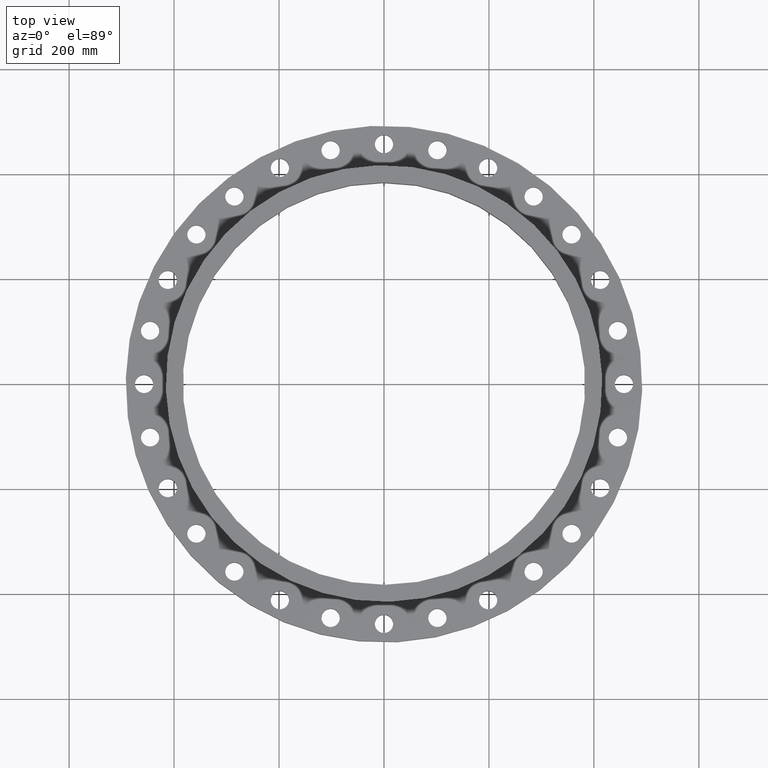
[diagram: clean part render]
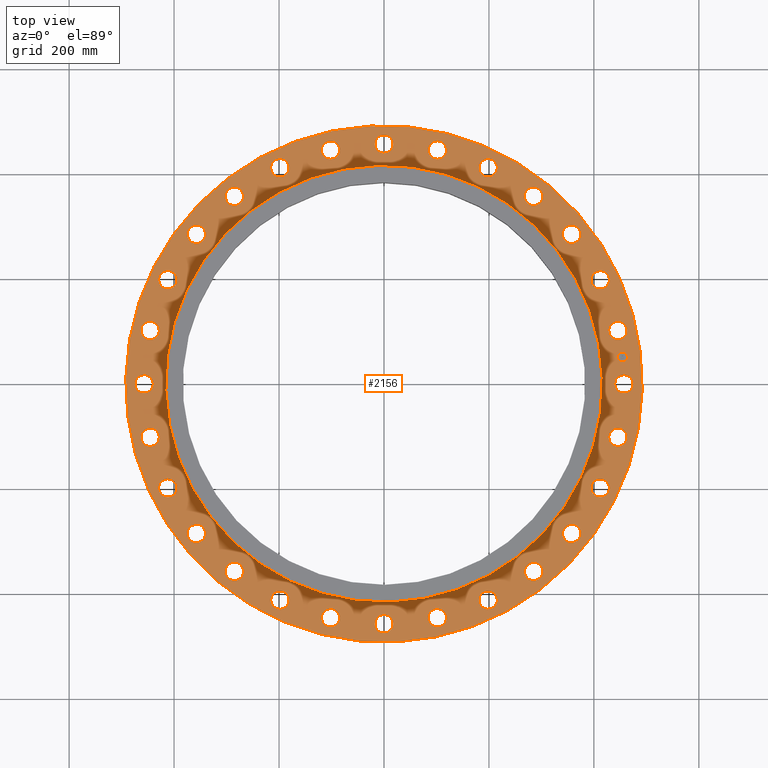
[diagram: same view with one face highlighted and labeled with its STEP entity id]
A machine part, top view. The second image highlights one B-rep face of the part: STEP entity #2156.
In plain terms, the highlighted planar face has unit normal (0, 0, 1).
Its self-contained STEP definition (entity closure, byte-faithful):
#65=AXIS2_PLACEMENT_3D('Circle Axis2P3D',#63,#64,$) ;
#82=AXIS2_PLACEMENT_3D('Circle Axis2P3D',#80,#81,$) ;
#108=AXIS2_PLACEMENT_3D('Circle Axis2P3D',#106,#107,$) ;
#134=AXIS2_PLACEMENT_3D('Circle Axis2P3D',#132,#133,$) ;
#326=AXIS2_PLACEMENT_3D('Circle Axis2P3D',#324,#325,$) ;
#338=AXIS2_PLACEMENT_3D('Circle Axis2P3D',#336,#337,$) ;
#873=AXIS2_PLACEMENT_3D('Circle Axis2P3D',#871,#872,$) ;
#885=AXIS2_PLACEMENT_3D('Circle Axis2P3D',#883,#884,$) ;
#916=AXIS2_PLACEMENT_3D('Circle Axis2P3D',#914,#915,$) ;
#928=AXIS2_PLACEMENT_3D('Circle Axis2P3D',#926,#927,$) ;
#959=AXIS2_PLACEMENT_3D('Circle Axis2P3D',#957,#958,$) ;
#971=AXIS2_PLACEMENT_3D('Circle Axis2P3D',#969,#970,$) ;
#1002=AXIS2_PLACEMENT_3D('Circle Axis2P3D',#1000,#1001,$) ;
#1014=AXIS2_PLACEMENT_3D('Circle Axis2P3D',#1012,#1013,$) ;
#1045=AXIS2_PLACEMENT_3D('Circle Axis2P3D',#1043,#1044,$) ;
#1057=AXIS2_PLACEMENT_3D('Circle Axis2P3D',#1055,#1056,$) ;
#1088=AXIS2_PLACEMENT_3D('Circle Axis2P3D',#1086,#1087,$) ;
#1100=AXIS2_PLACEMENT_3D('Circle Axis2P3D',#1098,#1099,$) ;
#1131=AXIS2_PLACEMENT_3D('Circle Axis2P3D',#1129,#1130,$) ;
#1143=AXIS2_PLACEMENT_3D('Circle Axis2P3D',#1141,#1142,$) ;
#1174=AXIS2_PLACEMENT_3D('Circle Axis2P3D',#1172,#1173,$) ;
#1186=AXIS2_PLACEMENT_3D('Circle Axis2P3D',#1184,#1185,$) ;
#1217=AXIS2_PLACEMENT_3D('Circle Axis2P3D',#1215,#1216,$) ;
#1229=AXIS2_PLACEMENT_3D('Circle Axis2P3D',#1227,#1228,$) ;
#1260=AXIS2_PLACEMENT_3D('Circle Axis2P3D',#1258,#1259,$) ;
#1272=AXIS2_PLACEMENT_3D('Circle Axis2P3D',#1270,#1271,$) ;
#1303=AXIS2_PLACEMENT_3D('Circle Axis2P3D',#1301,#1302,$) ;
#1315=AXIS2_PLACEMENT_3D('Circle Axis2P3D',#1313,#1314,$) ;
#1346=AXIS2_PLACEMENT_3D('Circle Axis2P3D',#1344,#1345,$) ;
#1358=AXIS2_PLACEMENT_3D('Circle Axis2P3D',#1356,#1357,$) ;
#1389=AXIS2_PLACEMENT_3D('Circle Axis2P3D',#1387,#1388,$) ;
#1401=AXIS2_PLACEMENT_3D('Circle Axis2P3D',#1399,#1400,$) ;
#1432=AXIS2_PLACEMENT_3D('Circle Axis2P3D',#1430,#1431,$) ;
#1444=AXIS2_PLACEMENT_3D('Circle Axis2P3D',#1442,#1443,$) ;
#1475=AXIS2_PLACEMENT_3D('Circle Axis2P3D',#1473,#1474,$) ;
#1487=AXIS2_PLACEMENT_3D('Circle Axis2P3D',#1485,#1486,$) ;
#1518=AXIS2_PLACEMENT_3D('Circle Axis2P3D',#1516,#1517,$) ;
#1530=AXIS2_PLACEMENT_3D('Circle Axis2P3D',#1528,#1529,$) ;
#1561=AXIS2_PLACEMENT_3D('Circle Axis2P3D',#1559,#1560,$) ;
#1573=AXIS2_PLACEMENT_3D('Circle Axis2P3D',#1571,#1572,$) ;
#1604=AXIS2_PLACEMENT_3D('Circle Axis2P3D',#1602,#1603,$) ;
#1616=AXIS2_PLACEMENT_3D('Circle Axis2P3D',#1614,#1615,$) ;
#1647=AXIS2_PLACEMENT_3D('Circle Axis2P3D',#1645,#1646,$) ;
#1659=AXIS2_PLACEMENT_3D('Circle Axis2P3D',#1657,#1658,$) ;
#1690=AXIS2_PLACEMENT_3D('Circle Axis2P3D',#1688,#1689,$) ;
#1702=AXIS2_PLACEMENT_3D('Circle Axis2P3D',#1700,#1701,$) ;
#1733=AXIS2_PLACEMENT_3D('Circle Axis2P3D',#1731,#1732,$) ;
#1745=AXIS2_PLACEMENT_3D('Circle Axis2P3D',#1743,#1744,$) ;
#1776=AXIS2_PLACEMENT_3D('Circle Axis2P3D',#1774,#1775,$) ;
#1788=AXIS2_PLACEMENT_3D('Circle Axis2P3D',#1786,#1787,$) ;
#1819=AXIS2_PLACEMENT_3D('Circle Axis2P3D',#1817,#1818,$) ;
#1831=AXIS2_PLACEMENT_3D('Circle Axis2P3D',#1829,#1830,$) ;
#1862=AXIS2_PLACEMENT_3D('Circle Axis2P3D',#1860,#1861,$) ;
#1874=AXIS2_PLACEMENT_3D('Circle Axis2P3D',#1872,#1873,$) ;
#1905=AXIS2_PLACEMENT_3D('Circle Axis2P3D',#1903,#1904,$) ;
#1917=AXIS2_PLACEMENT_3D('Circle Axis2P3D',#1915,#1916,$) ;
#1948=AXIS2_PLACEMENT_3D('Circle Axis2P3D',#1946,#1947,$) ;
#1960=AXIS2_PLACEMENT_3D('Circle Axis2P3D',#1958,#1959,$) ;
#1991=AXIS2_PLACEMENT_3D('Circle Axis2P3D',#1989,#1990,$) ;
#2003=AXIS2_PLACEMENT_3D('Circle Axis2P3D',#2001,#2002,$) ;
#2016=AXIS2_PLACEMENT_3D('Plane Axis2P3D',#2013,#2014,#2015) ;
#2140=AXIS2_PLACEMENT_3D('Circle Axis2P3D',#2138,#2139,$) ;
#2149=AXIS2_PLACEMENT_3D('Circle Axis2P3D',#2147,#2148,$) ;
#46=CARTESIAN_POINT('Vertex',(17.3966619888,0.329605057792,2.12500000001)) ;
#60=CARTESIAN_POINT('Vertex',(18.6033380114,-0.329605057792,2.12500000001)) ;
#63=CARTESIAN_POINT('Axis2P3D Location',(18.0000000001,0.,2.12500000001)) ;
#80=CARTESIAN_POINT('Axis2P3D Location',(18.0000000001,0.,2.12500000001)) ;
#103=CARTESIAN_POINT('Vertex',(-9.28886981049,17.0031621367,2.12500000001)) ;
#106=CARTESIAN_POINT('Axis2P3D Location',(0.,0.,2.12500000001)) ;
#110=CARTESIAN_POINT('Vertex',(9.28886981049,-17.0031621367,2.12500000001)) ;
#132=CARTESIAN_POINT('Axis2P3D Location',(0.,0.,2.12500000001)) ;
#314=CARTESIAN_POINT('Vertex',(-7.85059319468,14.370414451,2.12500000001)) ;
#321=CARTESIAN_POINT('Vertex',(7.85059319468,-14.370414451,2.12500000001)) ;
#324=CARTESIAN_POINT('Axis2P3D Location',(0.,0.,2.12500000001)) ;
#336=CARTESIAN_POINT('Axis2P3D Location',(0.,0.,2.12500000001)) ;
#861=CARTESIAN_POINT('Vertex',(16.8871473263,4.1924626443,2.12500000001)) ;
#868=CARTESIAN_POINT('Vertex',(18.2102575123,3.81829097816,2.12500000001)) ;
#871=CARTESIAN_POINT('Axis2P3D Location',(17.5487024193,4.00537681123,2.12500000001)) ;
#883=CARTESIAN_POINT('Axis2P3D Location',(17.5487024193,4.00537681123,2.12500000001)) ;
#904=CARTESIAN_POINT('Vertex',(15.5308405824,7.84509264763,2.12500000001)) ;
#911=CARTESIAN_POINT('Vertex',(16.9040386622,7.77472196067,2.12500000001)) ;
#914=CARTESIAN_POINT('Axis2P3D Location',(16.2174396223,7.80990730415,2.12500000001)) ;
#926=CARTESIAN_POINT('Axis2P3D Location',(16.2174396223,7.80990730415,2.12500000001)) ;
#947=CARTESIAN_POINT('Vertex',(13.3957526405,11.1043369473,2.12500000001)) ;
#954=CARTESIAN_POINT('Vertex',(14.7501807285,11.3412959197,2.12500000001)) ;
#957=CARTESIAN_POINT('Axis2P3D Location',(14.0729666845,11.2228164335,2.12500000001)) ;
#969=CARTESIAN_POINT('Axis2P3D Location',(14.0729666845,11.2228164335,2.12500000001)) ;
#990=CARTESIAN_POINT('Vertex',(10.5889457254,13.8067634248,2.12500000001)) ;
#997=CARTESIAN_POINT('Vertex',(11.8566871416,14.3391699441,2.12500000001)) ;
#1000=CARTESIAN_POINT('Axis2P3D Location',(11.2228164335,14.0729666845,2.12500000001)) ;
#1012=CARTESIAN_POINT('Axis2P3D Location',(11.2228164335,14.0729666845,2.12500000001)) ;
#1033=CARTESIAN_POINT('Vertex',(7.25116485608,15.8168611322,2.12500000001)) ;
#1040=CARTESIAN_POINT('Vertex',(8.36864975222,16.6180181124,2.12500000001)) ;
#1043=CARTESIAN_POINT('Axis2P3D Location',(7.80990730415,16.2174396223,2.12500000001)) ;
#1055=CARTESIAN_POINT('Axis2P3D Location',(7.80990730415,16.2174396223,2.12500000001)) ;
#1076=CARTESIAN_POINT('Vertex',(3.54978030263,17.0338353769,2.12500000001)) ;
#1083=CARTESIAN_POINT('Vertex',(4.46097331983,18.0635694617,2.12500000001)) ;
#1086=CARTESIAN_POINT('Axis2P3D Location',(4.00537681123,17.5487024193,2.12500000001)) ;
#1098=CARTESIAN_POINT('Axis2P3D Location',(4.00537681123,17.5487024193,2.12500000001)) ;
#1119=CARTESIAN_POINT('Vertex',(-0.329605057792,17.3966619888,2.12500000001)) ;
#1126=CARTESIAN_POINT('Vertex',(0.329605057792,18.6033380114,2.12500000001)) ;
#1129=CARTESIAN_POINT('Axis2P3D Location',(2.86105513149E-015,18.0000000001,2.12500000001)) ;
#1141=CARTESIAN_POINT('Axis2P3D Location',(2.86105513149E-015,18.0000000001,2.12500000001)) ;
#1162=CARTESIAN_POINT('Vertex',(-4.1924626443,16.8871473263,2.12500000001)) ;
#1169=CARTESIAN_POINT('Vertex',(-3.81829097816,18.2102575123,2.12500000001)) ;
#1172=CARTESIAN_POINT('Axis2P3D Location',(-4.00537681123,17.5487024193,2.12500000001)) ;
#1184=CARTESIAN_POINT('Axis2P3D Location',(-4.00537681123,17.5487024193,2.12500000001)) ;
#1205=CARTESIAN_POINT('Vertex',(-7.84509264763,15.5308405824,2.12500000001)) ;
#1212=CARTESIAN_POINT('Vertex',(-7.77472196067,16.9040386622,2.12500000001)) ;
#1215=CARTESIAN_POINT('Axis2P3D Location',(-7.80990730415,16.2174396223,2.12500000001)) ;
#1227=CARTESIAN_POINT('Axis2P3D Location',(-7.80990730415,16.2174396223,2.12500000001)) ;
#1248=CARTESIAN_POINT('Vertex',(-11.1043369473,13.3957526405,2.12500000001)) ;
#1255=CARTESIAN_POINT('Vertex',(-11.3412959197,14.7501807285,2.12500000001)) ;
#1258=CARTESIAN_POINT('Axis2P3D Location',(-11.2228164335,14.0729666845,2.12500000001)) ;
#1270=CARTESIAN_POINT('Axis2P3D Location',(-11.2228164335,14.0729666845,2.12500000001)) ;
#1291=CARTESIAN_POINT('Vertex',(-13.8067634248,10.5889457254,2.12500000001)) ;
#1298=CARTESIAN_POINT('Vertex',(-14.3391699441,11.8566871416,2.12500000001)) ;
#1301=CARTESIAN_POINT('Axis2P3D Location',(-14.0729666845,11.2228164335,2.12500000001)) ;
#1313=CARTESIAN_POINT('Axis2P3D Location',(-14.0729666845,11.2228164335,2.12500000001)) ;
#1334=CARTESIAN_POINT('Vertex',(-15.8168611322,7.25116485608,2.12500000001)) ;
#1341=CARTESIAN_POINT('Vertex',(-16.6180181124,8.36864975222,2.12500000001)) ;
#1344=CARTESIAN_POINT('Axis2P3D Location',(-16.2174396223,7.80990730415,2.12500000001)) ;
#1356=CARTESIAN_POINT('Axis2P3D Location',(-16.2174396223,7.80990730415,2.12500000001)) ;
#1377=CARTESIAN_POINT('Vertex',(-17.0338353769,3.54978030263,2.12500000001)) ;
#1384=CARTESIAN_POINT('Vertex',(-18.0635694617,4.46097331983,2.12500000001)) ;
#1387=CARTESIAN_POINT('Axis2P3D Location',(-17.5487024193,4.00537681123,2.12500000001)) ;
#1399=CARTESIAN_POINT('Axis2P3D Location',(-17.5487024193,4.00537681123,2.12500000001)) ;
#1420=CARTESIAN_POINT('Vertex',(-17.3966619888,-0.329605057792,2.12500000001)) ;
#1427=CARTESIAN_POINT('Vertex',(-18.6033380114,0.329605057792,2.12500000001)) ;
#1430=CARTESIAN_POINT('Axis2P3D Location',(-18.0000000001,1.01979700158E-014,2.12500000001)) ;
#1442=CARTESIAN_POINT('Axis2P3D Location',(-18.0000000001,1.01979700158E-014,2.12500000001)) ;
#1463=CARTESIAN_POINT('Vertex',(-16.8871473263,-4.1924626443,2.12500000001)) ;
#1470=CARTESIAN_POINT('Vertex',(-18.2102575123,-3.81829097816,2.12500000001)) ;
#1473=CARTESIAN_POINT('Axis2P3D Location',(-17.5487024193,-4.00537681123,2.12500000001)) ;
#1485=CARTESIAN_POINT('Axis2P3D Location',(-17.5487024193,-4.00537681123,2.12500000001)) ;
#1506=CARTESIAN_POINT('Vertex',(-15.5308405824,-7.84509264763,2.12500000001)) ;
#1513=CARTESIAN_POINT('Vertex',(-16.9040386622,-7.77472196067,2.12500000001)) ;
#1516=CARTESIAN_POINT('Axis2P3D Location',(-16.2174396223,-7.80990730415,2.12500000001)) ;
#1528=CARTESIAN_POINT('Axis2P3D Location',(-16.2174396223,-7.80990730415,2.12500000001)) ;
#1549=CARTESIAN_POINT('Vertex',(-13.3957526405,-11.1043369473,2.12500000001)) ;
#1556=CARTESIAN_POINT('Vertex',(-14.7501807285,-11.3412959197,2.12500000001)) ;
#1559=CARTESIAN_POINT('Axis2P3D Location',(-14.0729666845,-11.2228164335,2.12500000001)) ;
#1571=CARTESIAN_POINT('Axis2P3D Location',(-14.0729666845,-11.2228164335,2.12500000001)) ;
#1592=CARTESIAN_POINT('Vertex',(-10.5889457254,-13.8067634248,2.12500000001)) ;
#1599=CARTESIAN_POINT('Vertex',(-11.8566871416,-14.3391699441,2.12500000001)) ;
#1602=CARTESIAN_POINT('Axis2P3D Location',(-11.2228164335,-14.0729666845,2.12500000001)) ;
#1614=CARTESIAN_POINT('Axis2P3D Location',(-11.2228164335,-14.0729666845,2.12500000001)) ;
#1635=CARTESIAN_POINT('Vertex',(-7.25116485608,-15.8168611322,2.12500000001)) ;
#1642=CARTESIAN_POINT('Vertex',(-8.36864975222,-16.6180181124,2.12500000001)) ;
#1645=CARTESIAN_POINT('Axis2P3D Location',(-7.80990730415,-16.2174396223,2.12500000001)) ;
#1657=CARTESIAN_POINT('Axis2P3D Location',(-7.80990730415,-16.2174396223,2.12500000001)) ;
#1678=CARTESIAN_POINT('Vertex',(-3.54978030263,-17.0338353769,2.12500000001)) ;
#1685=CARTESIAN_POINT('Vertex',(-4.46097331983,-18.0635694617,2.12500000001)) ;
#1688=CARTESIAN_POINT('Axis2P3D Location',(-4.00537681123,-17.5487024193,2.12500000001)) ;
#1700=CARTESIAN_POINT('Axis2P3D Location',(-4.00537681123,-17.5487024193,2.12500000001)) ;
#1721=CARTESIAN_POINT('Vertex',(0.329605057792,-17.3966619888,2.12500000001)) ;
#1728=CARTESIAN_POINT('Vertex',(-0.329605057792,-18.6033380114,2.12500000001)) ;
#1731=CARTESIAN_POINT('Axis2P3D Location',(-3.30654635771E-015,-18.0000000001,2.12500000001)) ;
#1743=CARTESIAN_POINT('Axis2P3D Location',(-3.30654635771E-015,-18.0000000001,2.12500000001)) ;
#1764=CARTESIAN_POINT('Vertex',(4.1924626443,-16.8871473263,2.12500000001)) ;
#1771=CARTESIAN_POINT('Vertex',(3.81829097816,-18.2102575123,2.12500000001)) ;
#1774=CARTESIAN_POINT('Axis2P3D Location',(4.00537681123,-17.5487024193,2.12500000001)) ;
#1786=CARTESIAN_POINT('Axis2P3D Location',(4.00537681123,-17.5487024193,2.12500000001)) ;
#1807=CARTESIAN_POINT('Vertex',(7.84509264763,-15.5308405824,2.12500000001)) ;
#1814=CARTESIAN_POINT('Vertex',(7.77472196067,-16.9040386622,2.12500000001)) ;
#1817=CARTESIAN_POINT('Axis2P3D Location',(7.80990730415,-16.2174396223,2.12500000001)) ;
#1829=CARTESIAN_POINT('Axis2P3D Location',(7.80990730415,-16.2174396223,2.12500000001)) ;
#1850=CARTESIAN_POINT('Vertex',(11.1043369473,-13.3957526405,2.12500000001)) ;
#1857=CARTESIAN_POINT('Vertex',(11.3412959197,-14.7501807285,2.12500000001)) ;
#1860=CARTESIAN_POINT('Axis2P3D Location',(11.2228164335,-14.0729666845,2.12500000001)) ;
#1872=CARTESIAN_POINT('Axis2P3D Location',(11.2228164335,-14.0729666845,2.12500000001)) ;
#1893=CARTESIAN_POINT('Vertex',(13.8067634248,-10.5889457254,2.12500000001)) ;
#1900=CARTESIAN_POINT('Vertex',(14.3391699441,-11.8566871416,2.12500000001)) ;
#1903=CARTESIAN_POINT('Axis2P3D Location',(14.0729666845,-11.2228164335,2.12500000001)) ;
#1915=CARTESIAN_POINT('Axis2P3D Location',(14.0729666845,-11.2228164335,2.12500000001)) ;
#1936=CARTESIAN_POINT('Vertex',(15.8168611322,-7.25116485608,2.12500000001)) ;
#1943=CARTESIAN_POINT('Vertex',(16.6180181124,-8.36864975222,2.12500000001)) ;
#1946=CARTESIAN_POINT('Axis2P3D Location',(16.2174396223,-7.80990730415,2.12500000001)) ;
#1958=CARTESIAN_POINT('Axis2P3D Location',(16.2174396223,-7.80990730415,2.12500000001)) ;
#1979=CARTESIAN_POINT('Vertex',(17.0338353769,-3.54978030263,2.12500000001)) ;
#1986=CARTESIAN_POINT('Vertex',(18.0635694617,-4.46097331983,2.12500000001)) ;
#1989=CARTESIAN_POINT('Axis2P3D Location',(17.5487024193,-4.00537681123,2.12500000001)) ;
#2001=CARTESIAN_POINT('Axis2P3D Location',(17.5487024193,-4.00537681123,2.12500000001)) ;
#2013=CARTESIAN_POINT('Axis2P3D Location',(0.,16.3750000001,2.12500000001)) ;
#2138=CARTESIAN_POINT('Axis2P3D Location',(17.8868197781,2.01536056987,2.12500000001)) ;
#2142=CARTESIAN_POINT('Vertex',(17.8448330996,2.38800264858,2.12500000001)) ;
#2144=CARTESIAN_POINT('Vertex',(17.9288064567,1.64271849116,2.12500000001)) ;
#2147=CARTESIAN_POINT('Axis2P3D Location',(17.8868197781,2.01536056987,2.12500000001)) ;
#64=DIRECTION('Axis2P3D Direction',(0.,-0.,-0.0393700787402)) ;
#81=DIRECTION('Axis2P3D Direction',(0.,-0.,-0.0393700787402)) ;
#107=DIRECTION('Axis2P3D Direction',(0.,0.,0.0393700787402)) ;
#133=DIRECTION('Axis2P3D Direction',(0.,0.,0.0393700787402)) ;
#325=DIRECTION('Axis2P3D Direction',(0.,0.,0.0393700787402)) ;
#337=DIRECTION('Axis2P3D Direction',(0.,0.,0.0393700787402)) ;
#872=DIRECTION('Axis2P3D Direction',(0.,0.,-0.0393700787402)) ;
#884=DIRECTION('Axis2P3D Direction',(0.,0.,-0.0393700787402)) ;
#915=DIRECTION('Axis2P3D Direction',(0.,0.,-0.0393700787402)) ;
#927=DIRECTION('Axis2P3D Direction',(0.,0.,-0.0393700787402)) ;
#958=DIRECTION('Axis2P3D Direction',(0.,0.,-0.0393700787402)) ;
#970=DIRECTION('Axis2P3D Direction',(0.,0.,-0.0393700787402)) ;
#1001=DIRECTION('Axis2P3D Direction',(0.,0.,-0.0393700787402)) ;
#1013=DIRECTION('Axis2P3D Direction',(0.,0.,-0.0393700787402)) ;
#1044=DIRECTION('Axis2P3D Direction',(0.,0.,-0.0393700787402)) ;
#1056=DIRECTION('Axis2P3D Direction',(0.,0.,-0.0393700787402)) ;
#1087=DIRECTION('Axis2P3D Direction',(0.,0.,-0.0393700787402)) ;
#1099=DIRECTION('Axis2P3D Direction',(0.,0.,-0.0393700787402)) ;
#1130=DIRECTION('Axis2P3D Direction',(0.,0.,-0.0393700787402)) ;
#1142=DIRECTION('Axis2P3D Direction',(0.,0.,-0.0393700787402)) ;
#1173=DIRECTION('Axis2P3D Direction',(0.,0.,-0.0393700787402)) ;
#1185=DIRECTION('Axis2P3D Direction',(0.,0.,-0.0393700787402)) ;
#1216=DIRECTION('Axis2P3D Direction',(0.,0.,-0.0393700787402)) ;
#1228=DIRECTION('Axis2P3D Direction',(0.,0.,-0.0393700787402)) ;
#1259=DIRECTION('Axis2P3D Direction',(0.,0.,-0.0393700787402)) ;
#1271=DIRECTION('Axis2P3D Direction',(0.,0.,-0.0393700787402)) ;
#1302=DIRECTION('Axis2P3D Direction',(0.,0.,-0.0393700787402)) ;
#1314=DIRECTION('Axis2P3D Direction',(0.,0.,-0.0393700787402)) ;
#1345=DIRECTION('Axis2P3D Direction',(0.,0.,-0.0393700787402)) ;
#1357=DIRECTION('Axis2P3D Direction',(0.,0.,-0.0393700787402)) ;
#1388=DIRECTION('Axis2P3D Direction',(0.,0.,-0.0393700787402)) ;
#1400=DIRECTION('Axis2P3D Direction',(0.,0.,-0.0393700787402)) ;
#1431=DIRECTION('Axis2P3D Direction',(0.,0.,-0.0393700787402)) ;
#1443=DIRECTION('Axis2P3D Direction',(0.,0.,-0.0393700787402)) ;
#1474=DIRECTION('Axis2P3D Direction',(-0.,0.,-0.0393700787402)) ;
#1486=DIRECTION('Axis2P3D Direction',(-0.,0.,-0.0393700787402)) ;
#1517=DIRECTION('Axis2P3D Direction',(-0.,0.,-0.0393700787402)) ;
#1529=DIRECTION('Axis2P3D Direction',(-0.,0.,-0.0393700787402)) ;
#1560=DIRECTION('Axis2P3D Direction',(-0.,0.,-0.0393700787402)) ;
#1572=DIRECTION('Axis2P3D Direction',(-0.,0.,-0.0393700787402)) ;
#1603=DIRECTION('Axis2P3D Direction',(-0.,0.,-0.0393700787402)) ;
#1615=DIRECTION('Axis2P3D Direction',(-0.,0.,-0.0393700787402)) ;
#1646=DIRECTION('Axis2P3D Direction',(-0.,0.,-0.0393700787402)) ;
#1658=DIRECTION('Axis2P3D Direction',(-0.,0.,-0.0393700787402)) ;
#1689=DIRECTION('Axis2P3D Direction',(-0.,0.,-0.0393700787402)) ;
#1701=DIRECTION('Axis2P3D Direction',(-0.,0.,-0.0393700787402)) ;
#1732=DIRECTION('Axis2P3D Direction',(-0.,0.,-0.0393700787402)) ;
#1744=DIRECTION('Axis2P3D Direction',(-0.,0.,-0.0393700787402)) ;
#1775=DIRECTION('Axis2P3D Direction',(0.,-0.,-0.0393700787402)) ;
#1787=DIRECTION('Axis2P3D Direction',(0.,-0.,-0.0393700787402)) ;
#1818=DIRECTION('Axis2P3D Direction',(0.,-0.,-0.0393700787402)) ;
#1830=DIRECTION('Axis2P3D Direction',(0.,-0.,-0.0393700787402)) ;
#1861=DIRECTION('Axis2P3D Direction',(0.,-0.,-0.0393700787402)) ;
#1873=DIRECTION('Axis2P3D Direction',(0.,-0.,-0.0393700787402)) ;
#1904=DIRECTION('Axis2P3D Direction',(0.,-0.,-0.0393700787402)) ;
#1916=DIRECTION('Axis2P3D Direction',(0.,-0.,-0.0393700787402)) ;
#1947=DIRECTION('Axis2P3D Direction',(0.,-0.,-0.0393700787402)) ;
#1959=DIRECTION('Axis2P3D Direction',(0.,-0.,-0.0393700787402)) ;
#1990=DIRECTION('Axis2P3D Direction',(0.,-0.,-0.0393700787402)) ;
#2002=DIRECTION('Axis2P3D Direction',(0.,-0.,-0.0393700787402)) ;
#2014=DIRECTION('Axis2P3D Direction',(0.,0.,0.0393700787402)) ;
#2015=DIRECTION('Axis2P3D XDirection',(0.0393700787402,0.,0.)) ;
#2139=DIRECTION('Axis2P3D Direction',(0.,0.,0.0393700787402)) ;
#2148=DIRECTION('Axis2P3D Direction',(0.,0.,0.0393700787402)) ;
#2019=ORIENTED_EDGE('',*,*,#112,.T.) ;
#2020=ORIENTED_EDGE('',*,*,#136,.T.) ;
#2023=ORIENTED_EDGE('',*,*,#84,.F.) ;
#2024=ORIENTED_EDGE('',*,*,#67,.F.) ;
#2027=ORIENTED_EDGE('',*,*,#340,.F.) ;
#2028=ORIENTED_EDGE('',*,*,#328,.F.) ;
#2031=ORIENTED_EDGE('',*,*,#875,.F.) ;
#2032=ORIENTED_EDGE('',*,*,#887,.F.) ;
#2035=ORIENTED_EDGE('',*,*,#918,.F.) ;
#2036=ORIENTED_EDGE('',*,*,#930,.F.) ;
#2039=ORIENTED_EDGE('',*,*,#961,.F.) ;
#2040=ORIENTED_EDGE('',*,*,#973,.F.) ;
#2043=ORIENTED_EDGE('',*,*,#1004,.F.) ;
#2044=ORIENTED_EDGE('',*,*,#1016,.F.) ;
#2047=ORIENTED_EDGE('',*,*,#1047,.F.) ;
#2048=ORIENTED_EDGE('',*,*,#1059,.F.) ;
#2051=ORIENTED_EDGE('',*,*,#1090,.F.) ;
#2052=ORIENTED_EDGE('',*,*,#1102,.F.) ;
#2055=ORIENTED_EDGE('',*,*,#1133,.F.) ;
#2056=ORIENTED_EDGE('',*,*,#1145,.F.) ;
#2059=ORIENTED_EDGE('',*,*,#1176,.F.) ;
#2060=ORIENTED_EDGE('',*,*,#1188,.F.) ;
#2063=ORIENTED_EDGE('',*,*,#1219,.F.) ;
#2064=ORIENTED_EDGE('',*,*,#1231,.F.) ;
#2067=ORIENTED_EDGE('',*,*,#1262,.F.) ;
#2068=ORIENTED_EDGE('',*,*,#1274,.F.) ;
#2071=ORIENTED_EDGE('',*,*,#1305,.F.) ;
#2072=ORIENTED_EDGE('',*,*,#1317,.F.) ;
#2075=ORIENTED_EDGE('',*,*,#1348,.F.) ;
#2076=ORIENTED_EDGE('',*,*,#1360,.F.) ;
#2079=ORIENTED_EDGE('',*,*,#1391,.F.) ;
#2080=ORIENTED_EDGE('',*,*,#1403,.F.) ;
#2083=ORIENTED_EDGE('',*,*,#1434,.F.) ;
#2084=ORIENTED_EDGE('',*,*,#1446,.F.) ;
#2087=ORIENTED_EDGE('',*,*,#1477,.F.) ;
#2088=ORIENTED_EDGE('',*,*,#1489,.F.) ;
#2091=ORIENTED_EDGE('',*,*,#1520,.F.) ;
#2092=ORIENTED_EDGE('',*,*,#1532,.F.) ;
#2095=ORIENTED_EDGE('',*,*,#1563,.F.) ;
#2096=ORIENTED_EDGE('',*,*,#1575,.F.) ;
#2099=ORIENTED_EDGE('',*,*,#1606,.F.) ;
#2100=ORIENTED_EDGE('',*,*,#1618,.F.) ;
#2103=ORIENTED_EDGE('',*,*,#1649,.F.) ;
#2104=ORIENTED_EDGE('',*,*,#1661,.F.) ;
#2107=ORIENTED_EDGE('',*,*,#1692,.F.) ;
#2108=ORIENTED_EDGE('',*,*,#1704,.F.) ;
#2111=ORIENTED_EDGE('',*,*,#1735,.F.) ;
#2112=ORIENTED_EDGE('',*,*,#1747,.F.) ;
#2115=ORIENTED_EDGE('',*,*,#1778,.F.) ;
#2116=ORIENTED_EDGE('',*,*,#1790,.F.) ;
#2119=ORIENTED_EDGE('',*,*,#1821,.F.) ;
#2120=ORIENTED_EDGE('',*,*,#1833,.F.) ;
#2123=ORIENTED_EDGE('',*,*,#1864,.F.) ;
#2124=ORIENTED_EDGE('',*,*,#1876,.F.) ;
#2127=ORIENTED_EDGE('',*,*,#1907,.F.) ;
#2128=ORIENTED_EDGE('',*,*,#1919,.F.) ;
#2131=ORIENTED_EDGE('',*,*,#1950,.F.) ;
#2132=ORIENTED_EDGE('',*,*,#1962,.F.) ;
#2135=ORIENTED_EDGE('',*,*,#1993,.F.) ;
#2136=ORIENTED_EDGE('',*,*,#2005,.F.) ;
#2153=ORIENTED_EDGE('',*,*,#2146,.F.) ;
#2154=ORIENTED_EDGE('',*,*,#2151,.F.) ;
#2025=FACE_BOUND('',#2022,.T.) ;
#2029=FACE_BOUND('',#2026,.T.) ;
#2033=FACE_BOUND('',#2030,.T.) ;
#2037=FACE_BOUND('',#2034,.T.) ;
#2041=FACE_BOUND('',#2038,.T.) ;
#2045=FACE_BOUND('',#2042,.T.) ;
#2049=FACE_BOUND('',#2046,.T.) ;
#2053=FACE_BOUND('',#2050,.T.) ;
#2057=FACE_BOUND('',#2054,.T.) ;
#2061=FACE_BOUND('',#2058,.T.) ;
#2065=FACE_BOUND('',#2062,.T.) ;
#2069=FACE_BOUND('',#2066,.T.) ;
#2073=FACE_BOUND('',#2070,.T.) ;
#2077=FACE_BOUND('',#2074,.T.) ;
#2081=FACE_BOUND('',#2078,.T.) ;
#2085=FACE_BOUND('',#2082,.T.) ;
#2089=FACE_BOUND('',#2086,.T.) ;
#2093=FACE_BOUND('',#2090,.T.) ;
#2097=FACE_BOUND('',#2094,.T.) ;
#2101=FACE_BOUND('',#2098,.T.) ;
#2105=FACE_BOUND('',#2102,.T.) ;
#2109=FACE_BOUND('',#2106,.T.) ;
#2113=FACE_BOUND('',#2110,.T.) ;
#2117=FACE_BOUND('',#2114,.T.) ;
#2121=FACE_BOUND('',#2118,.T.) ;
#2125=FACE_BOUND('',#2122,.T.) ;
#2129=FACE_BOUND('',#2126,.T.) ;
#2133=FACE_BOUND('',#2130,.T.) ;
#2137=FACE_BOUND('',#2134,.T.) ;
#2155=FACE_BOUND('',#2152,.T.) ;
#2156=ADVANCED_FACE('PartBody',(#2021,#2025,#2029,#2033,#2037,#2041,#2045,#2049,#2053,#2057,#2061,#2065,#2069,#2073,#2077,#2081,#2085,#2089,#2093,#2097,#2101,#2105,#2109,#2113,#2117,#2121,#2125,#2129,#2133,#2137,#2155),#2017,.T.) ;
#66=CIRCLE('generated circle',#65,0.687500000003) ;
#83=CIRCLE('generated circle',#82,0.687500000003) ;
#109=CIRCLE('generated circle',#108,19.3750000001) ;
#135=CIRCLE('generated circle',#134,19.3750000001) ;
#327=CIRCLE('generated circle',#326,16.3750000001) ;
#339=CIRCLE('generated circle',#338,16.3750000001) ;
#874=CIRCLE('generated circle',#873,0.687500000003) ;
#886=CIRCLE('generated circle',#885,0.687500000003) ;
#917=CIRCLE('generated circle',#916,0.687500000003) ;
#929=CIRCLE('generated circle',#928,0.687500000003) ;
#960=CIRCLE('generated circle',#959,0.687500000003) ;
#972=CIRCLE('generated circle',#971,0.687500000003) ;
#1003=CIRCLE('generated circle',#1002,0.687500000003) ;
#1015=CIRCLE('generated circle',#1014,0.687500000003) ;
#1046=CIRCLE('generated circle',#1045,0.687500000003) ;
#1058=CIRCLE('generated circle',#1057,0.687500000003) ;
#1089=CIRCLE('generated circle',#1088,0.687500000003) ;
#1101=CIRCLE('generated circle',#1100,0.687500000003) ;
#1132=CIRCLE('generated circle',#1131,0.687500000003) ;
#1144=CIRCLE('generated circle',#1143,0.687500000003) ;
#1175=CIRCLE('generated circle',#1174,0.687500000003) ;
#1187=CIRCLE('generated circle',#1186,0.687500000003) ;
#1218=CIRCLE('generated circle',#1217,0.687500000003) ;
#1230=CIRCLE('generated circle',#1229,0.687500000003) ;
#1261=CIRCLE('generated circle',#1260,0.687500000003) ;
#1273=CIRCLE('generated circle',#1272,0.687500000003) ;
#1304=CIRCLE('generated circle',#1303,0.687500000003) ;
#1316=CIRCLE('generated circle',#1315,0.687500000003) ;
#1347=CIRCLE('generated circle',#1346,0.687500000003) ;
#1359=CIRCLE('generated circle',#1358,0.687500000003) ;
#1390=CIRCLE('generated circle',#1389,0.687500000003) ;
#1402=CIRCLE('generated circle',#1401,0.687500000003) ;
#1433=CIRCLE('generated circle',#1432,0.687500000003) ;
#1445=CIRCLE('generated circle',#1444,0.687500000003) ;
#1476=CIRCLE('generated circle',#1475,0.687500000003) ;
#1488=CIRCLE('generated circle',#1487,0.687500000003) ;
#1519=CIRCLE('generated circle',#1518,0.687500000003) ;
#1531=CIRCLE('generated circle',#1530,0.687500000003) ;
#1562=CIRCLE('generated circle',#1561,0.687500000003) ;
#1574=CIRCLE('generated circle',#1573,0.687500000003) ;
#1605=CIRCLE('generated circle',#1604,0.687500000003) ;
#1617=CIRCLE('generated circle',#1616,0.687500000003) ;
#1648=CIRCLE('generated circle',#1647,0.687500000003) ;
#1660=CIRCLE('generated circle',#1659,0.687500000003) ;
#1691=CIRCLE('generated circle',#1690,0.687500000003) ;
#1703=CIRCLE('generated circle',#1702,0.687500000003) ;
#1734=CIRCLE('generated circle',#1733,0.687500000003) ;
#1746=CIRCLE('generated circle',#1745,0.687500000003) ;
#1777=CIRCLE('generated circle',#1776,0.687500000003) ;
#1789=CIRCLE('generated circle',#1788,0.687500000003) ;
#1820=CIRCLE('generated circle',#1819,0.687500000003) ;
#1832=CIRCLE('generated circle',#1831,0.687500000003) ;
#1863=CIRCLE('generated circle',#1862,0.687500000003) ;
#1875=CIRCLE('generated circle',#1874,0.687500000003) ;
#1906=CIRCLE('generated circle',#1905,0.687500000003) ;
#1918=CIRCLE('generated circle',#1917,0.687500000003) ;
#1949=CIRCLE('generated circle',#1948,0.687500000003) ;
#1961=CIRCLE('generated circle',#1960,0.687500000003) ;
#1992=CIRCLE('generated circle',#1991,0.687500000003) ;
#2004=CIRCLE('generated circle',#2003,0.687500000003) ;
#2141=CIRCLE('generated circle',#2140,0.375000000002) ;
#2150=CIRCLE('generated circle',#2149,0.375000000002) ;
#67=EDGE_CURVE('',#61,#47,#66,.F.) ;
#84=EDGE_CURVE('',#47,#61,#83,.F.) ;
#112=EDGE_CURVE('',#111,#104,#109,.T.) ;
#136=EDGE_CURVE('',#104,#111,#135,.T.) ;
#328=EDGE_CURVE('',#322,#315,#327,.T.) ;
#340=EDGE_CURVE('',#315,#322,#339,.T.) ;
#875=EDGE_CURVE('',#869,#862,#874,.F.) ;
#887=EDGE_CURVE('',#862,#869,#886,.F.) ;
#918=EDGE_CURVE('',#912,#905,#917,.F.) ;
#930=EDGE_CURVE('',#905,#912,#929,.F.) ;
#961=EDGE_CURVE('',#955,#948,#960,.F.) ;
#973=EDGE_CURVE('',#948,#955,#972,.F.) ;
#1004=EDGE_CURVE('',#998,#991,#1003,.F.) ;
#1016=EDGE_CURVE('',#991,#998,#1015,.F.) ;
#1047=EDGE_CURVE('',#1041,#1034,#1046,.F.) ;
#1059=EDGE_CURVE('',#1034,#1041,#1058,.F.) ;
#1090=EDGE_CURVE('',#1084,#1077,#1089,.F.) ;
#1102=EDGE_CURVE('',#1077,#1084,#1101,.F.) ;
#1133=EDGE_CURVE('',#1127,#1120,#1132,.F.) ;
#1145=EDGE_CURVE('',#1120,#1127,#1144,.F.) ;
#1176=EDGE_CURVE('',#1170,#1163,#1175,.F.) ;
#1188=EDGE_CURVE('',#1163,#1170,#1187,.F.) ;
#1219=EDGE_CURVE('',#1213,#1206,#1218,.F.) ;
#1231=EDGE_CURVE('',#1206,#1213,#1230,.F.) ;
#1262=EDGE_CURVE('',#1256,#1249,#1261,.F.) ;
#1274=EDGE_CURVE('',#1249,#1256,#1273,.F.) ;
#1305=EDGE_CURVE('',#1299,#1292,#1304,.F.) ;
#1317=EDGE_CURVE('',#1292,#1299,#1316,.F.) ;
#1348=EDGE_CURVE('',#1342,#1335,#1347,.F.) ;
#1360=EDGE_CURVE('',#1335,#1342,#1359,.F.) ;
#1391=EDGE_CURVE('',#1385,#1378,#1390,.F.) ;
#1403=EDGE_CURVE('',#1378,#1385,#1402,.F.) ;
#1434=EDGE_CURVE('',#1428,#1421,#1433,.F.) ;
#1446=EDGE_CURVE('',#1421,#1428,#1445,.F.) ;
#1477=EDGE_CURVE('',#1471,#1464,#1476,.F.) ;
#1489=EDGE_CURVE('',#1464,#1471,#1488,.F.) ;
#1520=EDGE_CURVE('',#1514,#1507,#1519,.F.) ;
#1532=EDGE_CURVE('',#1507,#1514,#1531,.F.) ;
#1563=EDGE_CURVE('',#1557,#1550,#1562,.F.) ;
#1575=EDGE_CURVE('',#1550,#1557,#1574,.F.) ;
#1606=EDGE_CURVE('',#1600,#1593,#1605,.F.) ;
#1618=EDGE_CURVE('',#1593,#1600,#1617,.F.) ;
#1649=EDGE_CURVE('',#1643,#1636,#1648,.F.) ;
#1661=EDGE_CURVE('',#1636,#1643,#1660,.F.) ;
#1692=EDGE_CURVE('',#1686,#1679,#1691,.F.) ;
#1704=EDGE_CURVE('',#1679,#1686,#1703,.F.) ;
#1735=EDGE_CURVE('',#1729,#1722,#1734,.F.) ;
#1747=EDGE_CURVE('',#1722,#1729,#1746,.F.) ;
#1778=EDGE_CURVE('',#1772,#1765,#1777,.F.) ;
#1790=EDGE_CURVE('',#1765,#1772,#1789,.F.) ;
#1821=EDGE_CURVE('',#1815,#1808,#1820,.F.) ;
#1833=EDGE_CURVE('',#1808,#1815,#1832,.F.) ;
#1864=EDGE_CURVE('',#1858,#1851,#1863,.F.) ;
#1876=EDGE_CURVE('',#1851,#1858,#1875,.F.) ;
#1907=EDGE_CURVE('',#1901,#1894,#1906,.F.) ;
#1919=EDGE_CURVE('',#1894,#1901,#1918,.F.) ;
#1950=EDGE_CURVE('',#1944,#1937,#1949,.F.) ;
#1962=EDGE_CURVE('',#1937,#1944,#1961,.F.) ;
#1993=EDGE_CURVE('',#1987,#1980,#1992,.F.) ;
#2005=EDGE_CURVE('',#1980,#1987,#2004,.F.) ;
#2146=EDGE_CURVE('',#2143,#2145,#2141,.T.) ;
#2151=EDGE_CURVE('',#2145,#2143,#2150,.T.) ;
#2018=EDGE_LOOP('',(#2019,#2020)) ;
#2022=EDGE_LOOP('',(#2023,#2024)) ;
#2026=EDGE_LOOP('',(#2027,#2028)) ;
#2030=EDGE_LOOP('',(#2031,#2032)) ;
#2034=EDGE_LOOP('',(#2035,#2036)) ;
#2038=EDGE_LOOP('',(#2039,#2040)) ;
#2042=EDGE_LOOP('',(#2043,#2044)) ;
#2046=EDGE_LOOP('',(#2047,#2048)) ;
#2050=EDGE_LOOP('',(#2051,#2052)) ;
#2054=EDGE_LOOP('',(#2055,#2056)) ;
#2058=EDGE_LOOP('',(#2059,#2060)) ;
#2062=EDGE_LOOP('',(#2063,#2064)) ;
#2066=EDGE_LOOP('',(#2067,#2068)) ;
#2070=EDGE_LOOP('',(#2071,#2072)) ;
#2074=EDGE_LOOP('',(#2075,#2076)) ;
#2078=EDGE_LOOP('',(#2079,#2080)) ;
#2082=EDGE_LOOP('',(#2083,#2084)) ;
#2086=EDGE_LOOP('',(#2087,#2088)) ;
#2090=EDGE_LOOP('',(#2091,#2092)) ;
#2094=EDGE_LOOP('',(#2095,#2096)) ;
#2098=EDGE_LOOP('',(#2099,#2100)) ;
#2102=EDGE_LOOP('',(#2103,#2104)) ;
#2106=EDGE_LOOP('',(#2107,#2108)) ;
#2110=EDGE_LOOP('',(#2111,#2112)) ;
#2114=EDGE_LOOP('',(#2115,#2116)) ;
#2118=EDGE_LOOP('',(#2119,#2120)) ;
#2122=EDGE_LOOP('',(#2123,#2124)) ;
#2126=EDGE_LOOP('',(#2127,#2128)) ;
#2130=EDGE_LOOP('',(#2131,#2132)) ;
#2134=EDGE_LOOP('',(#2135,#2136)) ;
#2152=EDGE_LOOP('',(#2153,#2154)) ;
#2021=FACE_OUTER_BOUND('',#2018,.T.) ;
#2017=PLANE('',#2016) ;
#47=VERTEX_POINT('',#46) ;
#61=VERTEX_POINT('',#60) ;
#104=VERTEX_POINT('',#103) ;
#111=VERTEX_POINT('',#110) ;
#315=VERTEX_POINT('',#314) ;
#322=VERTEX_POINT('',#321) ;
#862=VERTEX_POINT('',#861) ;
#869=VERTEX_POINT('',#868) ;
#905=VERTEX_POINT('',#904) ;
#912=VERTEX_POINT('',#911) ;
#948=VERTEX_POINT('',#947) ;
#955=VERTEX_POINT('',#954) ;
#991=VERTEX_POINT('',#990) ;
#998=VERTEX_POINT('',#997) ;
#1034=VERTEX_POINT('',#1033) ;
#1041=VERTEX_POINT('',#1040) ;
#1077=VERTEX_POINT('',#1076) ;
#1084=VERTEX_POINT('',#1083) ;
#1120=VERTEX_POINT('',#1119) ;
#1127=VERTEX_POINT('',#1126) ;
#1163=VERTEX_POINT('',#1162) ;
#1170=VERTEX_POINT('',#1169) ;
#1206=VERTEX_POINT('',#1205) ;
#1213=VERTEX_POINT('',#1212) ;
#1249=VERTEX_POINT('',#1248) ;
#1256=VERTEX_POINT('',#1255) ;
#1292=VERTEX_POINT('',#1291) ;
#1299=VERTEX_POINT('',#1298) ;
#1335=VERTEX_POINT('',#1334) ;
#1342=VERTEX_POINT('',#1341) ;
#1378=VERTEX_POINT('',#1377) ;
#1385=VERTEX_POINT('',#1384) ;
#1421=VERTEX_POINT('',#1420) ;
#1428=VERTEX_POINT('',#1427) ;
#1464=VERTEX_POINT('',#1463) ;
#1471=VERTEX_POINT('',#1470) ;
#1507=VERTEX_POINT('',#1506) ;
#1514=VERTEX_POINT('',#1513) ;
#1550=VERTEX_POINT('',#1549) ;
#1557=VERTEX_POINT('',#1556) ;
#1593=VERTEX_POINT('',#1592) ;
#1600=VERTEX_POINT('',#1599) ;
#1636=VERTEX_POINT('',#1635) ;
#1643=VERTEX_POINT('',#1642) ;
#1679=VERTEX_POINT('',#1678) ;
#1686=VERTEX_POINT('',#1685) ;
#1722=VERTEX_POINT('',#1721) ;
#1729=VERTEX_POINT('',#1728) ;
#1765=VERTEX_POINT('',#1764) ;
#1772=VERTEX_POINT('',#1771) ;
#1808=VERTEX_POINT('',#1807) ;
#1815=VERTEX_POINT('',#1814) ;
#1851=VERTEX_POINT('',#1850) ;
#1858=VERTEX_POINT('',#1857) ;
#1894=VERTEX_POINT('',#1893) ;
#1901=VERTEX_POINT('',#1900) ;
#1937=VERTEX_POINT('',#1936) ;
#1944=VERTEX_POINT('',#1943) ;
#1980=VERTEX_POINT('',#1979) ;
#1987=VERTEX_POINT('',#1986) ;
#2143=VERTEX_POINT('',#2142) ;
#2145=VERTEX_POINT('',#2144) ;